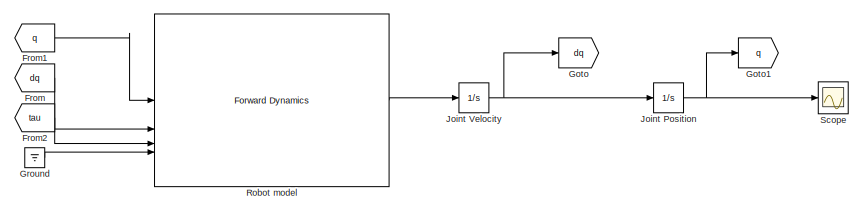
[diagram: root canvas - part 1/3, top center region]
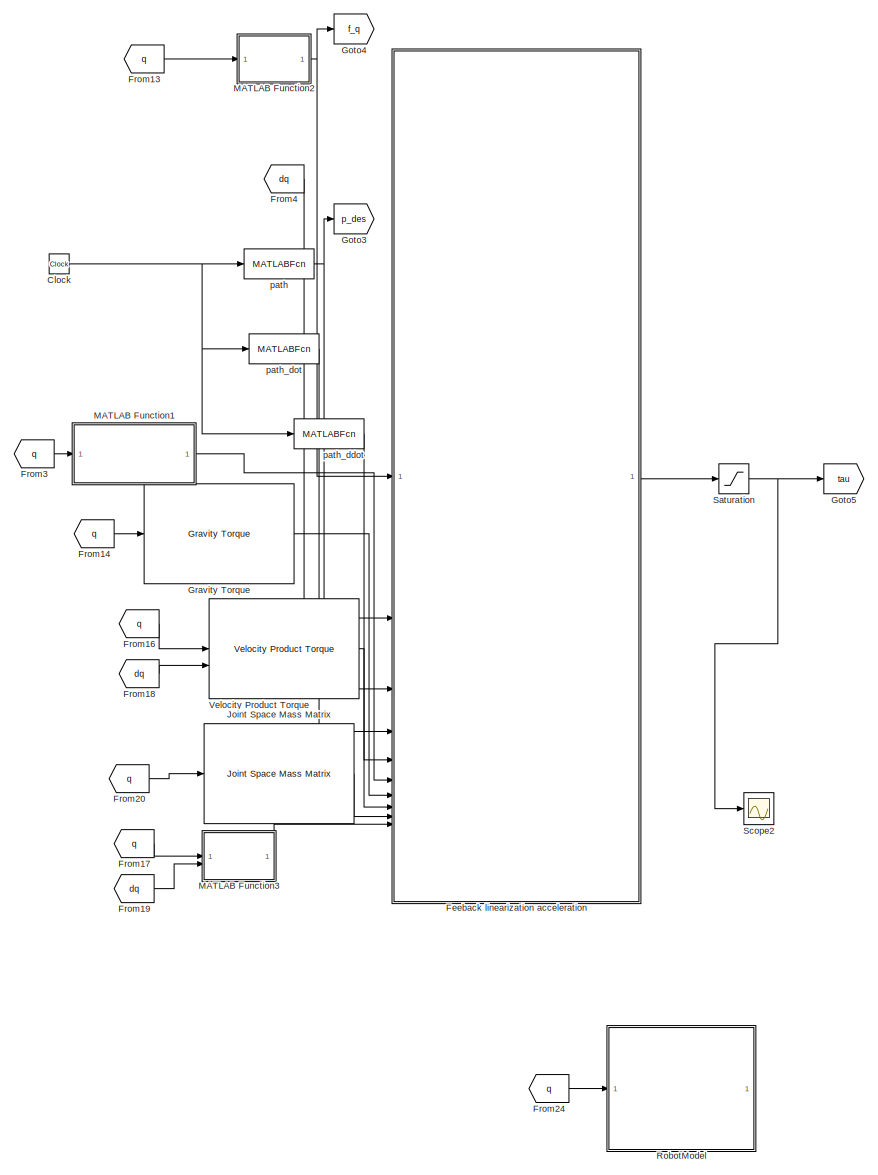
[diagram: root canvas - part 2/3, left side, full height]
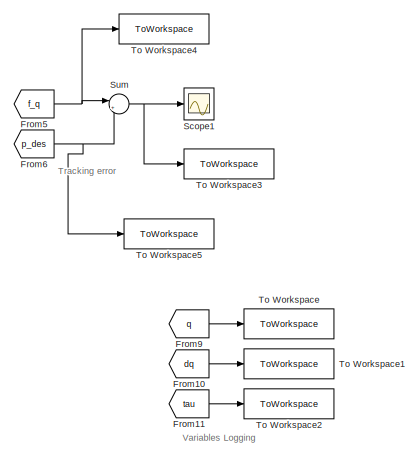
[diagram: root canvas - part 3/3, middle right region]
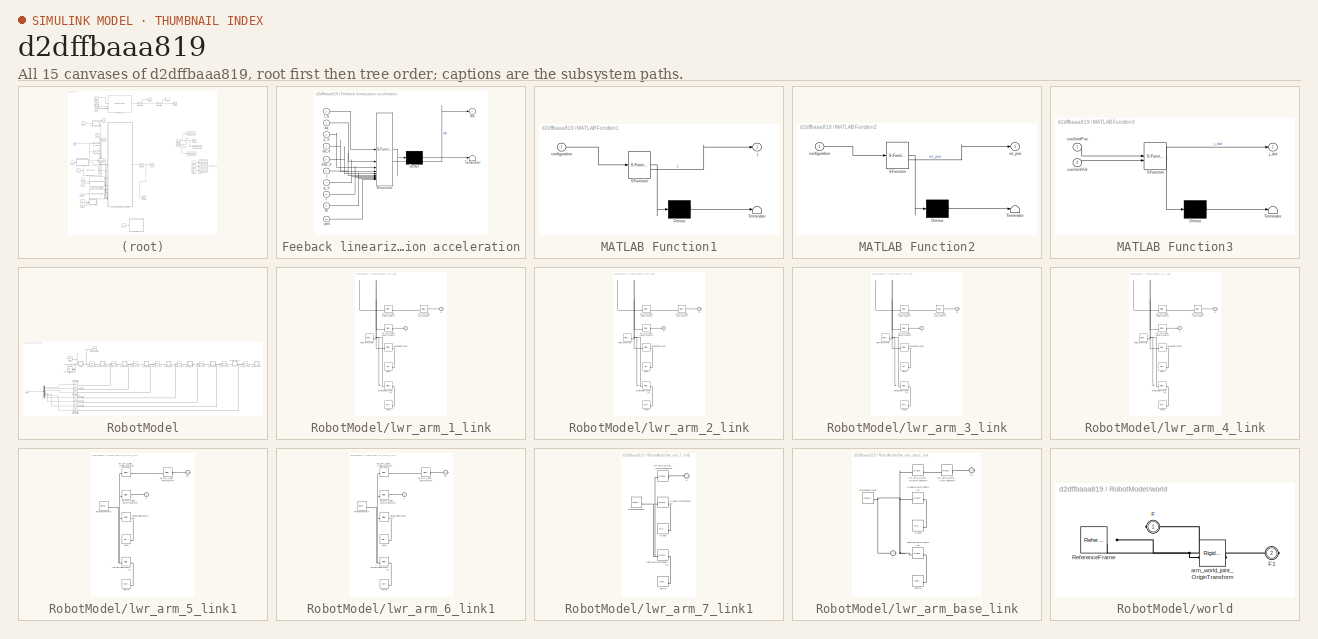
[diagram: thumbnail index - all 15 canvases of the model, root first then tree order]
MODEL slx_d2dffbaaa819
KIND model
CONFIG AbsTol = auto
CONFIG EnableMultiTasking = off
CONFIG FixedStep = auto
CONFIG MaxStep = auto
CONFIG MinStep = auto
CONFIG RelTol = 1e-3
CONFIG SampleTimeConstraint = Unconstrained
CONFIG SolverName = VariableStepAuto
CONFIG StartTime = 0.0
CONFIG StopTime = simulation_time
BLOCK [Clock] Clock
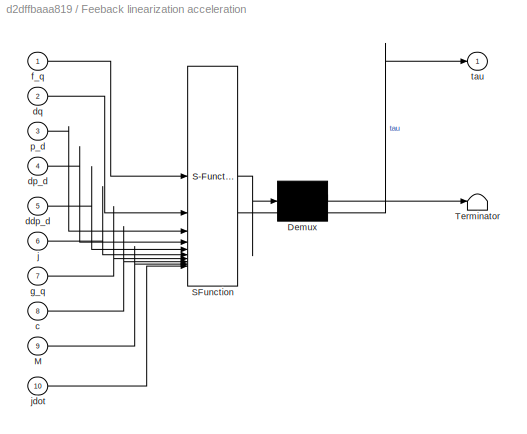
BLOCK [SubSystem] Feeback linearization acceleration
  ErrorFcn = Stateflow.Translate.translate
  PermitHierarchicalResolution = ExplicitOnly
  SFBlockType = MATLAB Function
  TreatAsAtomicUnit = on
BLOCK [Demux] Feeback linearization acceleration/ Demux 
  Outputs = 1
BLOCK [S-Function] Feeback linearization acceleration/ SFunction 
  EnableBusSupport = on
  FunctionName = sf_sfun
  PortCounts = [10 2]
  SFcnIsStateOwnerBlock = off
  SFunctionDeploymentMode = off
  Tag = Stateflow S-Function 2
BLOCK [Terminator] Feeback linearization acceleration/ Terminator 
BLOCK [Inport] Feeback linearization acceleration/M
  Port = 9
BLOCK [Inport] Feeback linearization acceleration/c
  Port = 8
BLOCK [Inport] Feeback linearization acceleration/ddp_d
  Port = 5
BLOCK [Inport] Feeback linearization acceleration/dp_d
  Port = 4
BLOCK [Inport] Feeback linearization acceleration/dq
  Port = 2
BLOCK [Inport] Feeback linearization acceleration/f_q
BLOCK [Inport] Feeback linearization acceleration/g_q
  Port = 7
BLOCK [Inport] Feeback linearization acceleration/j
  Port = 6
BLOCK [Inport] Feeback linearization acceleration/jdot
  Port = 10
BLOCK [Inport] Feeback linearization acceleration/p_d
  Port = 3
BLOCK [Outport] Feeback linearization acceleration/tau
BLOCK [From] From
  GotoTag = dq
BLOCK [From] From1
  GotoTag = q
BLOCK [From] From10
  GotoTag = dq
BLOCK [From] From11
  GotoTag = tau
BLOCK [From] From13
  GotoTag = q
BLOCK [From] From14
  GotoTag = q
BLOCK [From] From16
  GotoTag = q
BLOCK [From] From17
  GotoTag = q
BLOCK [From] From18
  GotoTag = dq
BLOCK [From] From19
  GotoTag = dq
BLOCK [From] From2
  GotoTag = tau
BLOCK [From] From20
  GotoTag = q
BLOCK [From] From24
  GotoTag = q
BLOCK [From] From3
  GotoTag = q
BLOCK [From] From4
  GotoTag = dq
BLOCK [From] From5
  GotoTag = f_q
BLOCK [From] From6
  GotoTag = p_des
BLOCK [From] From9
  GotoTag = q
BLOCK [Goto] Goto
  GotoTag = dq
BLOCK [Goto] Goto1
  GotoTag = q
BLOCK [Goto] Goto3
  GotoTag = p_des
BLOCK [Goto] Goto4
  GotoTag = f_q
BLOCK [Goto] Goto5
  GotoTag = tau
BLOCK [Reference] Gravity Torque  REF=robotmaniplib/Gravity Torque
  SourceBlock = robotmaniplib/Gravity Torque
  SourceType = Gravity Torque
BLOCK [Ground] Ground
BLOCK [Integrator] Joint Position
  InitialCondition = q_0
BLOCK [Reference] Joint Space Mass Matrix  REF=robotmaniplib/Joint Space Mass Matrix
  SourceBlock = robotmaniplib/Joint Space Mass Matrix
  SourceType = Joint Space Mass Matrix
BLOCK [Integrator] Joint Velocity
  InitialCondition = dq_0
BLOCK [SubSystem] MATLAB Function1
  ErrorFcn = Stateflow.Translate.translate
  PermitHierarchicalResolution = ExplicitOnly
  SFBlockType = MATLAB Function
  TreatAsAtomicUnit = on
BLOCK [Demux] MATLAB Function1/ Demux 
  Outputs = 1
BLOCK [S-Function] MATLAB Function1/ SFunction 
  EnableBusSupport = on
  FunctionName = sf_sfun
  PortCounts = [1 2]
  SFcnIsStateOwnerBlock = off
  SFunctionDeploymentMode = off
  Tag = Stateflow S-Function 3
BLOCK [Terminator] MATLAB Function1/ Terminator 
BLOCK [Inport] MATLAB Function1/configuration
BLOCK [Outport] MATLAB Function1/j
BLOCK [SubSystem] MATLAB Function2
  ErrorFcn = Stateflow.Translate.translate
  PermitHierarchicalResolution = ExplicitOnly
  SFBlockType = MATLAB Function
  TreatAsAtomicUnit = on
BLOCK [Demux] MATLAB Function2/ Demux 
  Outputs = 1
BLOCK [S-Function] MATLAB Function2/ SFunction 
  EnableBusSupport = on
  FunctionName = sf_sfun
  PortCounts = [1 2]
  SFcnIsStateOwnerBlock = off
  SFunctionDeploymentMode = off
  Tag = Stateflow S-Function 12
BLOCK [Terminator] MATLAB Function2/ Terminator 
BLOCK [Inport] MATLAB Function2/configuration
BLOCK [Outport] MATLAB Function2/ee_pos
BLOCK [SubSystem] MATLAB Function3
  ErrorFcn = Stateflow.Translate.translate
  PermitHierarchicalResolution = ExplicitOnly
  SFBlockType = MATLAB Function
  TreatAsAtomicUnit = on
BLOCK [Demux] MATLAB Function3/ Demux 
  Outputs = 1
BLOCK [S-Function] MATLAB Function3/ SFunction 
  EnableBusSupport = on
  FunctionName = sf_sfun
  PortCounts = [2 2]
  SFcnIsStateOwnerBlock = off
  SFunctionDeploymentMode = off
  Tag = Stateflow S-Function 4
BLOCK [Terminator] MATLAB Function3/ Terminator 
BLOCK [Inport] MATLAB Function3/currJointPos
BLOCK [Inport] MATLAB Function3/currJointVel
  Port = 2
BLOCK [Outport] MATLAB Function3/j_dot
BLOCK [Reference] Robot model  REF=robotmaniplib/Forward Dynamics
  SourceBlock = robotmaniplib/Forward Dynamics
  SourceType = Forward Dynamics
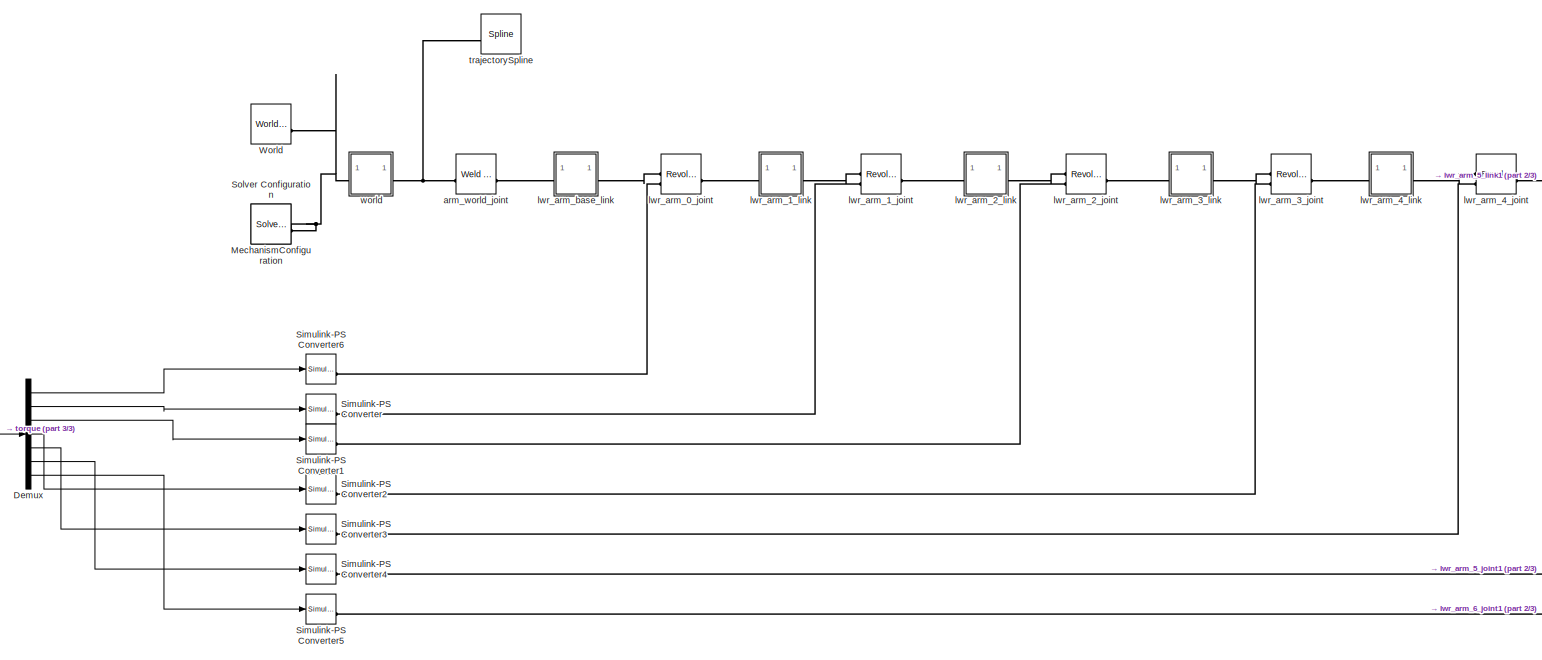
[diagram: RobotModel - part 1/3, center side, full height]
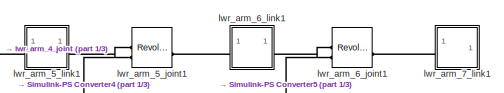
[diagram: RobotModel - part 2/3, top right region]
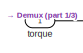
[diagram: RobotModel - part 3/3, bottom left region]
BLOCK [SubSystem] RobotModel
BLOCK [Demux] RobotModel/Demux
  Outputs = 7
BLOCK [Reference] RobotModel/MechanismConfiguration  REF=sm_lib/Utilities/Mechanism
Configuration
  SourceBlock = sm_lib/Utilities/Mechanism\nConfiguration
  SourceType = Mechanism\nConfiguration
BLOCK [Reference] RobotModel/Simulink-PS Converter  REF=nesl_utility/Simulink-PS
Converter
  SourceBlock = nesl_utility/Simulink-PS\nConverter
  SourceType = Simulink-PS\nConverter
BLOCK [Reference] RobotModel/Simulink-PS Converter1  REF=nesl_utility/Simulink-PS
Converter
  SourceBlock = nesl_utility/Simulink-PS\nConverter
  SourceType = Simulink-PS\nConverter
BLOCK [Reference] RobotModel/Simulink-PS Converter2  REF=nesl_utility/Simulink-PS
Converter
  SourceBlock = nesl_utility/Simulink-PS\nConverter
  SourceType = Simulink-PS\nConverter
BLOCK [Reference] RobotModel/Simulink-PS Converter3  REF=nesl_utility/Simulink-PS
Converter
  SourceBlock = nesl_utility/Simulink-PS\nConverter
  SourceType = Simulink-PS\nConverter
BLOCK [Reference] RobotModel/Simulink-PS Converter4  REF=nesl_utility/Simulink-PS
Converter
  SourceBlock = nesl_utility/Simulink-PS\nConverter
  SourceType = Simulink-PS\nConverter
BLOCK [Reference] RobotModel/Simulink-PS Converter5  REF=nesl_utility/Simulink-PS
Converter
  SourceBlock = nesl_utility/Simulink-PS\nConverter
  SourceType = Simulink-PS\nConverter
BLOCK [Reference] RobotModel/Simulink-PS Converter6  REF=nesl_utility/Simulink-PS
Converter
  SourceBlock = nesl_utility/Simulink-PS\nConverter
  SourceType = Simulink-PS\nConverter
BLOCK [Reference] RobotModel/Solver Configuration  REF=nesl_utility/Solver
Configuration
  SourceBlock = nesl_utility/Solver\nConfiguration
  SourceType = Solver\nConfiguration
BLOCK [Reference] RobotModel/World  REF=sm_lib/Frames and
Transforms/World Frame
  SourceBlock = sm_lib/Frames and\nTransforms/World Frame
  SourceType = World Frame
BLOCK [Reference] RobotModel/arm_world_joint  REF=sm_lib/Joints/Weld Joint
  SourceBlock = sm_lib/Joints/Weld Joint
  SourceType = Weld Joint
BLOCK [Reference] RobotModel/lwr_arm_0_joint  REF=sm_lib/Joints/Revolute Joint
  SourceBlock = sm_lib/Joints/Revolute Joint
  SourceType = Revolute Joint
BLOCK [Reference] RobotModel/lwr_arm_1_joint  REF=sm_lib/Joints/Revolute Joint
  SourceBlock = sm_lib/Joints/Revolute Joint
  SourceType = Revolute Joint
BLOCK [SubSystem] RobotModel/lwr_arm_1_link
BLOCK [PMIOPort] RobotModel/lwr_arm_1_link/F
  Side = Left
BLOCK [PMIOPort] RobotModel/lwr_arm_1_link/F1
  Port = 2
  Side = Right
BLOCK [Reference] RobotModel/lwr_arm_1_link/Inertia  REF=sm_lib/Body Elements/Inertia
  SourceBlock = sm_lib/Body Elements/Inertia
  SourceType = Inertia
BLOCK [Reference] RobotModel/lwr_arm_1_link/InertiaOriginTransform  REF=sm_lib/Frames and
Transforms/Rigid
Transform
  SourceBlock = sm_lib/Frames and\nTransforms/Rigid\nTransform
  SourceType = Rigid\nTransform
BLOCK [Reference] RobotModel/lwr_arm_1_link/ReferenceFrame  REF=sm_lib/Frames and
Transforms/Reference
Frame
  SourceBlock = sm_lib/Frames and\nTransforms/Reference\nFrame
  SourceType = Reference\nFrame
BLOCK [Reference] RobotModel/lwr_arm_1_link/Visual  REF=sm_lib/Body Elements/File Solid
  SourceBlock = sm_lib/Body Elements/File Solid
  SourceType = File Solid
BLOCK [Reference] RobotModel/lwr_arm_1_link/VisualOriginTransform  REF=sm_lib/Frames and
Transforms/Rigid
Transform
  SourceBlock = sm_lib/Frames and\nTransforms/Rigid\nTransform
  SourceType = Rigid\nTransform
BLOCK [Reference] RobotModel/lwr_arm_1_link/lwr_arm_0_joint_AxisInvTransform  REF=sm_lib/Frames and
Transforms/Rigid
Transform
  SourceBlock = sm_lib/Frames and\nTransforms/Rigid\nTransform
  SourceType = Rigid\nTransform
BLOCK [Reference] RobotModel/lwr_arm_1_link/lwr_arm_1_joint_AxisTransform  REF=sm_lib/Frames and
Transforms/Rigid
Transform
  SourceBlock = sm_lib/Frames and\nTransforms/Rigid\nTransform
  SourceType = Rigid\nTransform
BLOCK [Reference] RobotModel/lwr_arm_1_link/lwr_arm_1_joint_OriginTransform  REF=sm_lib/Frames and
Transforms/Rigid
Transform
  SourceBlock = sm_lib/Frames and\nTransforms/Rigid\nTransform
  SourceType = Rigid\nTransform
BLOCK [Reference] RobotModel/lwr_arm_2_joint  REF=sm_lib/Joints/Revolute Joint
  SourceBlock = sm_lib/Joints/Revolute Joint
  SourceType = Revolute Joint
BLOCK [SubSystem] RobotModel/lwr_arm_2_link
BLOCK [PMIOPort] RobotModel/lwr_arm_2_link/F
  Side = Left
BLOCK [PMIOPort] RobotModel/lwr_arm_2_link/F1
  Port = 2
  Side = Right
BLOCK [Reference] RobotModel/lwr_arm_2_link/Inertia  REF=sm_lib/Body Elements/Inertia
  SourceBlock = sm_lib/Body Elements/Inertia
  SourceType = Inertia
BLOCK [Reference] RobotModel/lwr_arm_2_link/InertiaOriginTransform  REF=sm_lib/Frames and
Transforms/Rigid
Transform
  SourceBlock = sm_lib/Frames and\nTransforms/Rigid\nTransform
  SourceType = Rigid\nTransform
BLOCK [Reference] RobotModel/lwr_arm_2_link/ReferenceFrame  REF=sm_lib/Frames and
Transforms/Reference
Frame
  SourceBlock = sm_lib/Frames and\nTransforms/Reference\nFrame
  SourceType = Reference\nFrame
BLOCK [Reference] RobotModel/lwr_arm_2_link/Visual  REF=sm_lib/Body Elements/File Solid
  SourceBlock = sm_lib/Body Elements/File Solid
  SourceType = File Solid
BLOCK [Reference] RobotModel/lwr_arm_2_link/VisualOriginTransform  REF=sm_lib/Frames and
Transforms/Rigid
Transform
  SourceBlock = sm_lib/Frames and\nTransforms/Rigid\nTransform
  SourceType = Rigid\nTransform
BLOCK [Reference] RobotModel/lwr_arm_2_link/lwr_arm_1_joint_AxisInvTransform  REF=sm_lib/Frames and
Transforms/Rigid
Transform
  SourceBlock = sm_lib/Frames and\nTransforms/Rigid\nTransform
  SourceType = Rigid\nTransform
BLOCK [Reference] RobotModel/lwr_arm_2_link/lwr_arm_2_joint_AxisTransform  REF=sm_lib/Frames and
Transforms/Rigid
Transform
  SourceBlock = sm_lib/Frames and\nTransforms/Rigid\nTransform
  SourceType = Rigid\nTransform
BLOCK [Reference] RobotModel/lwr_arm_2_link/lwr_arm_2_joint_OriginTransform  REF=sm_lib/Frames and
Transforms/Rigid
Transform
  SourceBlock = sm_lib/Frames and\nTransforms/Rigid\nTransform
  SourceType = Rigid\nTransform
BLOCK [Reference] RobotModel/lwr_arm_3_joint  REF=sm_lib/Joints/Revolute Joint
  SourceBlock = sm_lib/Joints/Revolute Joint
  SourceType = Revolute Joint
BLOCK [SubSystem] RobotModel/lwr_arm_3_link
BLOCK [PMIOPort] RobotModel/lwr_arm_3_link/F
  Side = Left
BLOCK [PMIOPort] RobotModel/lwr_arm_3_link/F1
  Port = 2
  Side = Right
BLOCK [Reference] RobotModel/lwr_arm_3_link/Inertia  REF=sm_lib/Body Elements/Inertia
  SourceBlock = sm_lib/Body Elements/Inertia
  SourceType = Inertia
BLOCK [Reference] RobotModel/lwr_arm_3_link/InertiaOriginTransform  REF=sm_lib/Frames and
Transforms/Rigid
Transform
  SourceBlock = sm_lib/Frames and\nTransforms/Rigid\nTransform
  SourceType = Rigid\nTransform
BLOCK [Reference] RobotModel/lwr_arm_3_link/ReferenceFrame  REF=sm_lib/Frames and
Transforms/Reference
Frame
  SourceBlock = sm_lib/Frames and\nTransforms/Reference\nFrame
  SourceType = Reference\nFrame
BLOCK [Reference] RobotModel/lwr_arm_3_link/Visual  REF=sm_lib/Body Elements/File Solid
  SourceBlock = sm_lib/Body Elements/File Solid
  SourceType = File Solid
BLOCK [Reference] RobotModel/lwr_arm_3_link/VisualOriginTransform  REF=sm_lib/Frames and
Transforms/Rigid
Transform
  SourceBlock = sm_lib/Frames and\nTransforms/Rigid\nTransform
  SourceType = Rigid\nTransform
BLOCK [Reference] RobotModel/lwr_arm_3_link/lwr_arm_2_joint_AxisInvTransform  REF=sm_lib/Frames and
Transforms/Rigid
Transform
  SourceBlock = sm_lib/Frames and\nTransforms/Rigid\nTransform
  SourceType = Rigid\nTransform
BLOCK [Reference] RobotModel/lwr_arm_3_link/lwr_arm_3_joint_AxisTransform  REF=sm_lib/Frames and
Transforms/Rigid
Transform
  SourceBlock = sm_lib/Frames and\nTransforms/Rigid\nTransform
  SourceType = Rigid\nTransform
BLOCK [Reference] RobotModel/lwr_arm_3_link/lwr_arm_3_joint_OriginTransform  REF=sm_lib/Frames and
Transforms/Rigid
Transform
  SourceBlock = sm_lib/Frames and\nTransforms/Rigid\nTransform
  SourceType = Rigid\nTransform
BLOCK [Reference] RobotModel/lwr_arm_4_joint  REF=sm_lib/Joints/Revolute Joint
  SourceBlock = sm_lib/Joints/Revolute Joint
  SourceType = Revolute Joint
BLOCK [SubSystem] RobotModel/lwr_arm_4_link
BLOCK [PMIOPort] RobotModel/lwr_arm_4_link/F
  Side = Left
BLOCK [PMIOPort] RobotModel/lwr_arm_4_link/F1
  Port = 2
  Side = Right
BLOCK [Reference] RobotModel/lwr_arm_4_link/Inertia  REF=sm_lib/Body Elements/Inertia
  SourceBlock = sm_lib/Body Elements/Inertia
  SourceType = Inertia
BLOCK [Reference] RobotModel/lwr_arm_4_link/InertiaOriginTransform  REF=sm_lib/Frames and
Transforms/Rigid
Transform
  SourceBlock = sm_lib/Frames and\nTransforms/Rigid\nTransform
  SourceType = Rigid\nTransform
BLOCK [Reference] RobotModel/lwr_arm_4_link/ReferenceFrame  REF=sm_lib/Frames and
Transforms/Reference
Frame
  SourceBlock = sm_lib/Frames and\nTransforms/Reference\nFrame
  SourceType = Reference\nFrame
BLOCK [Reference] RobotModel/lwr_arm_4_link/Visual  REF=sm_lib/Body Elements/File Solid
  SourceBlock = sm_lib/Body Elements/File Solid
  SourceType = File Solid
BLOCK [Reference] RobotModel/lwr_arm_4_link/VisualOriginTransform  REF=sm_lib/Frames and
Transforms/Rigid
Transform
  SourceBlock = sm_lib/Frames and\nTransforms/Rigid\nTransform
  SourceType = Rigid\nTransform
BLOCK [Reference] RobotModel/lwr_arm_4_link/lwr_arm_3_joint_AxisInvTransform  REF=sm_lib/Frames and
Transforms/Rigid
Transform
  SourceBlock = sm_lib/Frames and\nTransforms/Rigid\nTransform
  SourceType = Rigid\nTransform
BLOCK [Reference] RobotModel/lwr_arm_4_link/lwr_arm_4_joint_AxisTransform  REF=sm_lib/Frames and
Transforms/Rigid
Transform
  SourceBlock = sm_lib/Frames and\nTransforms/Rigid\nTransform
  SourceType = Rigid\nTransform
BLOCK [Reference] RobotModel/lwr_arm_4_link/lwr_arm_4_joint_OriginTransform  REF=sm_lib/Frames and
Transforms/Rigid
Transform
  SourceBlock = sm_lib/Frames and\nTransforms/Rigid\nTransform
  SourceType = Rigid\nTransform
BLOCK [Reference] RobotModel/lwr_arm_5_joint1  REF=sm_lib/Joints/Revolute Joint
  SourceBlock = sm_lib/Joints/Revolute Joint
  SourceType = Revolute Joint
BLOCK [SubSystem] RobotModel/lwr_arm_5_link1
BLOCK [PMIOPort] RobotModel/lwr_arm_5_link1/F
  Side = Left
BLOCK [PMIOPort] RobotModel/lwr_arm_5_link1/F1
  Port = 2
  Side = Right
BLOCK [Reference] RobotModel/lwr_arm_5_link1/Inertia  REF=sm_lib/Body Elements/Inertia
  SourceBlock = sm_lib/Body Elements/Inertia
  SourceType = Inertia
BLOCK [Reference] RobotModel/lwr_arm_5_link1/InertiaOriginTransform  REF=sm_lib/Frames and
Transforms/Rigid
Transform
  SourceBlock = sm_lib/Frames and\nTransforms/Rigid\nTransform
  SourceType = Rigid\nTransform
BLOCK [Reference] RobotModel/lwr_arm_5_link1/ReferenceFrame  REF=sm_lib/Frames and
Transforms/Reference
Frame
  SourceBlock = sm_lib/Frames and\nTransforms/Reference\nFrame
  SourceType = Reference\nFrame
BLOCK [Reference] RobotModel/lwr_arm_5_link1/Visual  REF=sm_lib/Body Elements/File Solid
  SourceBlock = sm_lib/Body Elements/File Solid
  SourceType = File Solid
BLOCK [Reference] RobotModel/lwr_arm_5_link1/VisualOriginTransform  REF=sm_lib/Frames and
Transforms/Rigid
Transform
  SourceBlock = sm_lib/Frames and\nTransforms/Rigid\nTransform
  SourceType = Rigid\nTransform
BLOCK [Reference] RobotModel/lwr_arm_5_link1/lwr_arm_4_joint_AxisInvTransform  REF=sm_lib/Frames and
Transforms/Rigid
Transform
  SourceBlock = sm_lib/Frames and\nTransforms/Rigid\nTransform
  SourceType = Rigid\nTransform
BLOCK [Reference] RobotModel/lwr_arm_5_link1/lwr_arm_5_joint_AxisTransform  REF=sm_lib/Frames and
Transforms/Rigid
Transform
  SourceBlock = sm_lib/Frames and\nTransforms/Rigid\nTransform
  SourceType = Rigid\nTransform
BLOCK [Reference] RobotModel/lwr_arm_5_link1/lwr_arm_5_joint_OriginTransform  REF=sm_lib/Frames and
Transforms/Rigid
Transform
  SourceBlock = sm_lib/Frames and\nTransforms/Rigid\nTransform
  SourceType = Rigid\nTransform
BLOCK [Reference] RobotModel/lwr_arm_6_joint1  REF=sm_lib/Joints/Revolute Joint
  SourceBlock = sm_lib/Joints/Revolute Joint
  SourceType = Revolute Joint
BLOCK [SubSystem] RobotModel/lwr_arm_6_link1
BLOCK [PMIOPort] RobotModel/lwr_arm_6_link1/F
  Side = Left
BLOCK [PMIOPort] RobotModel/lwr_arm_6_link1/F1
  Port = 2
  Side = Right
BLOCK [Reference] RobotModel/lwr_arm_6_link1/Inertia  REF=sm_lib/Body Elements/Inertia
  SourceBlock = sm_lib/Body Elements/Inertia
  SourceType = Inertia
BLOCK [Reference] RobotModel/lwr_arm_6_link1/InertiaOriginTransform  REF=sm_lib/Frames and
Transforms/Rigid
Transform
  SourceBlock = sm_lib/Frames and\nTransforms/Rigid\nTransform
  SourceType = Rigid\nTransform
BLOCK [Reference] RobotModel/lwr_arm_6_link1/ReferenceFrame  REF=sm_lib/Frames and
Transforms/Reference
Frame
  SourceBlock = sm_lib/Frames and\nTransforms/Reference\nFrame
  SourceType = Reference\nFrame
BLOCK [Reference] RobotModel/lwr_arm_6_link1/Visual  REF=sm_lib/Body Elements/File Solid
  SourceBlock = sm_lib/Body Elements/File Solid
  SourceType = File Solid
BLOCK [Reference] RobotModel/lwr_arm_6_link1/VisualOriginTransform  REF=sm_lib/Frames and
Transforms/Rigid
Transform
  SourceBlock = sm_lib/Frames and\nTransforms/Rigid\nTransform
  SourceType = Rigid\nTransform
BLOCK [Reference] RobotModel/lwr_arm_6_link1/lwr_arm_5_joint_AxisInvTransform  REF=sm_lib/Frames and
Transforms/Rigid
Transform
  SourceBlock = sm_lib/Frames and\nTransforms/Rigid\nTransform
  SourceType = Rigid\nTransform
BLOCK [Reference] RobotModel/lwr_arm_6_link1/lwr_arm_6_joint_AxisTransform  REF=sm_lib/Frames and
Transforms/Rigid
Transform
  SourceBlock = sm_lib/Frames and\nTransforms/Rigid\nTransform
  SourceType = Rigid\nTransform
BLOCK [Reference] RobotModel/lwr_arm_6_link1/lwr_arm_6_joint_OriginTransform  REF=sm_lib/Frames and
Transforms/Rigid
Transform
  SourceBlock = sm_lib/Frames and\nTransforms/Rigid\nTransform
  SourceType = Rigid\nTransform
BLOCK [SubSystem] RobotModel/lwr_arm_7_link1
BLOCK [PMIOPort] RobotModel/lwr_arm_7_link1/F
  Side = Left
BLOCK [Reference] RobotModel/lwr_arm_7_link1/Inertia  REF=sm_lib/Body Elements/Inertia
  SourceBlock = sm_lib/Body Elements/Inertia
  SourceType = Inertia
BLOCK [Reference] RobotModel/lwr_arm_7_link1/InertiaOriginTransform  REF=sm_lib/Frames and
Transforms/Rigid
Transform
  SourceBlock = sm_lib/Frames and\nTransforms/Rigid\nTransform
  SourceType = Rigid\nTransform
BLOCK [Reference] RobotModel/lwr_arm_7_link1/ReferenceFrame  REF=sm_lib/Frames and
Transforms/Reference
Frame
  SourceBlock = sm_lib/Frames and\nTransforms/Reference\nFrame
  SourceType = Reference\nFrame
BLOCK [Reference] RobotModel/lwr_arm_7_link1/Visual  REF=sm_lib/Body Elements/File Solid
  SourceBlock = sm_lib/Body Elements/File Solid
  SourceType = File Solid
BLOCK [Reference] RobotModel/lwr_arm_7_link1/VisualOriginTransform  REF=sm_lib/Frames and
Transforms/Rigid
Transform
  SourceBlock = sm_lib/Frames and\nTransforms/Rigid\nTransform
  SourceType = Rigid\nTransform
BLOCK [Reference] RobotModel/lwr_arm_7_link1/lwr_arm_6_joint_AxisInvTransform  REF=sm_lib/Frames and
Transforms/Rigid
Transform
  SourceBlock = sm_lib/Frames and\nTransforms/Rigid\nTransform
  SourceType = Rigid\nTransform
BLOCK [SubSystem] RobotModel/lwr_arm_base_link
BLOCK [PMIOPort] RobotModel/lwr_arm_base_link/F
  Side = Left
BLOCK [PMIOPort] RobotModel/lwr_arm_base_link/F1
  Port = 2
  Side = Right
BLOCK [Reference] RobotModel/lwr_arm_base_link/Inertia  REF=sm_lib/Body Elements/Inertia
  SourceBlock = sm_lib/Body Elements/Inertia
  SourceType = Inertia
BLOCK [Reference] RobotModel/lwr_arm_base_link/InertiaOriginTransform  REF=sm_lib/Frames and
Transforms/Rigid
Transform
  SourceBlock = sm_lib/Frames and\nTransforms/Rigid\nTransform
  SourceType = Rigid\nTransform
BLOCK [Reference] RobotModel/lwr_arm_base_link/ReferenceFrame  REF=sm_lib/Frames and
Transforms/Reference
Frame
  SourceBlock = sm_lib/Frames and\nTransforms/Reference\nFrame
  SourceType = Reference\nFrame
BLOCK [Reference] RobotModel/lwr_arm_base_link/Visual  REF=sm_lib/Body Elements/File Solid
  SourceBlock = sm_lib/Body Elements/File Solid
  SourceType = File Solid
BLOCK [Reference] RobotModel/lwr_arm_base_link/VisualOriginTransform  REF=sm_lib/Frames and
Transforms/Rigid
Transform
  SourceBlock = sm_lib/Frames and\nTransforms/Rigid\nTransform
  SourceType = Rigid\nTransform
BLOCK [Reference] RobotModel/lwr_arm_base_link/lwr_arm_0_joint_AxisTransform  REF=sm_lib/Frames and
Transforms/Rigid
Transform
  SourceBlock = sm_lib/Frames and\nTransforms/Rigid\nTransform
  SourceType = Rigid\nTransform
BLOCK [Reference] RobotModel/lwr_arm_base_link/lwr_arm_0_joint_OriginTransform  REF=sm_lib/Frames and
Transforms/Rigid
Transform
  SourceBlock = sm_lib/Frames and\nTransforms/Rigid\nTransform
  SourceType = Rigid\nTransform
BLOCK [Inport] RobotModel/torque
BLOCK [Reference] RobotModel/trajectorySpline  REF=sm_lib/Curves and Surfaces/Spline
  SourceBlock = sm_lib/Curves and Surfaces/Spline
  SourceType = Spline
BLOCK [SubSystem] RobotModel/world
BLOCK [PMIOPort] RobotModel/world/F
  Side = Left
BLOCK [PMIOPort] RobotModel/world/F1
  Port = 2
  Side = Right
BLOCK [Reference] RobotModel/world/ReferenceFrame  REF=sm_lib/Frames and
Transforms/Reference
Frame
  SourceBlock = sm_lib/Frames and\nTransforms/Reference\nFrame
  SourceType = Reference\nFrame
BLOCK [Reference] RobotModel/world/arm_world_joint_OriginTransform  REF=sm_lib/Frames and
Transforms/Rigid
Transform
  SourceBlock = sm_lib/Frames and\nTransforms/Rigid\nTransform
  SourceType = Rigid\nTransform
BLOCK [Saturate] Saturation
  LowerLimit = torque_low_bound
  UpperLimit = torque_up_bound
BLOCK [Scope] Scope
  Floating = off
  NumInputPorts = 1
  ScopeSpecificationString = Simulink.scopes.TimeScopeBlockCfg('CurrentConfiguration', extmgr.ConfigurationSet(extmgr.Configuration('Core','General UI',true),extmgr.Configuration('Core','Source UI',true),extmgr.Configuration('Sources','WiredSimulink',true),extmgr.Configuration('Visuals','Time Domain',true,'SerializedDisplays',{struct('MinYLimReal','-32.32576','MaxYLimReal','22.04365','YLabelReal','','MinYLimMag','0.00000','Ma...<+1703ch>
BLOCK [Scope] Scope1
  Floating = off
  NumInputPorts = 1
  ScopeSpecificationString = Simulink.scopes.TimeScopeBlockCfg('CurrentConfiguration', extmgr.ConfigurationSet(extmgr.Configuration('Core','General UI',true),extmgr.Configuration('Core','Source UI',true),extmgr.Configuration('Sources','WiredSimulink',true,'DataLoggingVariableName','ScopeData1'),extmgr.Configuration('Visuals','Time Domain',true,'SerializedDisplays',{struct('MinYLimReal','-0.53551','MaxYLimReal','0.35715','YLab...<+1541ch>
BLOCK [Scope] Scope2
  Floating = off
  NumInputPorts = 1
  ScopeSpecificationString = Simulink.scopes.TimeScopeBlockCfg('CurrentConfiguration', extmgr.ConfigurationSet(extmgr.Configuration('Core','General UI',true),extmgr.Configuration('Core','Source UI',true),extmgr.Configuration('Sources','WiredSimulink',true,'DataLoggingVariableName','ScopeData1'),extmgr.Configuration('Visuals','Time Domain',true,'SerializedDisplays',{struct('MinYLimReal','-43.75','MaxYLimReal','43.75','YLabelRe...<+1604ch>
BLOCK [Sum] Sum
  Inputs = |+-
BLOCK [ToWorkspace] To Workspace
  FixptAsFi = on
  MaxDataPoints = inf
  SampleTime = -1
  SaveFormat = Timeseries
  VariableName = q
BLOCK [ToWorkspace] To Workspace1
  FixptAsFi = on
  MaxDataPoints = inf
  SampleTime = -1
  SaveFormat = Timeseries
  VariableName = dq
BLOCK [ToWorkspace] To Workspace2
  FixptAsFi = on
  MaxDataPoints = inf
  SampleTime = -1
  SaveFormat = Timeseries
  VariableName = tau
BLOCK [ToWorkspace] To Workspace3
  FixptAsFi = on
  MaxDataPoints = inf
  SampleTime = -1
  SaveFormat = Timeseries
  VariableName = cart_err
BLOCK [ToWorkspace] To Workspace4
  FixptAsFi = on
  MaxDataPoints = inf
  SampleTime = -1
  SaveFormat = Timeseries
  VariableName = f_q
BLOCK [ToWorkspace] To Workspace5
  FixptAsFi = on
  MaxDataPoints = inf
  SampleTime = -1
  SaveFormat = Timeseries
  VariableName = f_d
BLOCK [Reference] Velocity Product Torque  REF=robotmaniplib/Velocity Product Torque
  SourceBlock = robotmaniplib/Velocity Product Torque
  SourceType = Velocity Product Torque
BLOCK [MATLABFcn] path
  MATLABFcn = path(u)
BLOCK [MATLABFcn] path_ddot
  MATLABFcn = path_ddot(u)
BLOCK [MATLABFcn] path_dot
  MATLABFcn = path_dot(u)
ANNOTATION (root): Tracking error
ANNOTATION (root): Variables Logging
NET Clock:1 -> path:1, path_ddot:1, path_dot:1
LINE Feeback linearization acceleration:1 -> Saturation:1
LINE From10:1 -> To Workspace1:1
LINE From11:1 -> To Workspace2:1
LINE From13:1 -> MATLAB Function2:1
LINE From14:1 -> Gravity Torque:1
LINE From16:1 -> Velocity Product Torque:1
LINE From17:1 -> MATLAB Function3:1
LINE From18:1 -> Velocity Product Torque:2
LINE From19:1 -> MATLAB Function3:2
LINE From1:1 -> Robot model:1
LINE From20:1 -> Joint Space Mass Matrix:1
LINE From24:1 -> RobotModel:1
LINE From2:1 -> Robot model:3
LINE From3:1 -> MATLAB Function1:1
LINE From4:1 -> Feeback linearization acceleration:2
NET From5:1 -> Sum:1, To Workspace4:1
NET From6:1 -> Sum:2, To Workspace5:1
LINE From9:1 -> To Workspace:1
LINE From:1 -> Robot model:2
LINE Gravity Torque:1 -> Feeback linearization acceleration:7
LINE Ground:1 -> Robot model:4
NET Joint Position:1 -> Goto1:1, Scope:1
LINE Joint Space Mass Matrix:1 -> Feeback linearization acceleration:9
NET Joint Velocity:1 -> Goto:1, Joint Position:1
LINE MATLAB Function1:1 -> Feeback linearization acceleration:6
NET MATLAB Function2:1 -> Feeback linearization acceleration:1, Goto4:1
LINE MATLAB Function3:1 -> Feeback linearization acceleration:10
LINE Robot model:1 -> Joint Velocity:1
LINE RobotModel/Demux:1 -> RobotModel/Simulink-PS Converter6:1
LINE RobotModel/Demux:2 -> RobotModel/Simulink-PS Converter:1
LINE RobotModel/Demux:3 -> RobotModel/Simulink-PS Converter1:1
LINE RobotModel/Demux:4 -> RobotModel/Simulink-PS Converter2:1
LINE RobotModel/Demux:5 -> RobotModel/Simulink-PS Converter3:1
LINE RobotModel/Demux:6 -> RobotModel/Simulink-PS Converter4:1
LINE RobotModel/Demux:7 -> RobotModel/Simulink-PS Converter5:1
LINE RobotModel/torque:1 -> RobotModel/Demux:1
NET Saturation:1 -> Goto5:1, Scope2:1
NET Sum:1 -> Scope1:1, To Workspace3:1
LINE Velocity Product Torque:1 -> Feeback linearization acceleration:8
NET path:1 -> Feeback linearization acceleration:3, Goto3:1
LINE path_ddot:1 -> Feeback linearization acceleration:5
LINE path_dot:1 -> Feeback linearization acceleration:4
PNET net1: RobotModel/MechanismConfiguration:RConn1 -- RobotModel/Solver Configuration:RConn1 -- RobotModel/World:RConn1 -- RobotModel/world:LConn1
PLINE RobotModel/Simulink-PS Converter1:RConn1 -- RobotModel/lwr_arm_2_joint:LConn2
PLINE RobotModel/Simulink-PS Converter2:RConn1 -- RobotModel/lwr_arm_3_joint:LConn2
PLINE RobotModel/Simulink-PS Converter3:RConn1 -- RobotModel/lwr_arm_4_joint:LConn2
PLINE RobotModel/Simulink-PS Converter4:RConn1 -- RobotModel/lwr_arm_5_joint1:LConn2
PLINE RobotModel/Simulink-PS Converter5:RConn1 -- RobotModel/lwr_arm_6_joint1:LConn2
PLINE RobotModel/Simulink-PS Converter6:RConn1 -- RobotModel/lwr_arm_0_joint:LConn2
PLINE RobotModel/Simulink-PS Converter:RConn1 -- RobotModel/lwr_arm_1_joint:LConn2
PNET net2: RobotModel/arm_world_joint:LConn1 -- RobotModel/trajectorySpline:LConn1 -- RobotModel/world:RConn1
PLINE RobotModel/arm_world_joint:RConn1 -- RobotModel/lwr_arm_base_link:LConn1
PLINE RobotModel/lwr_arm_0_joint:LConn1 -- RobotModel/lwr_arm_base_link:RConn1
PLINE RobotModel/lwr_arm_0_joint:RConn1 -- RobotModel/lwr_arm_1_link:LConn1
PLINE RobotModel/lwr_arm_1_joint:LConn1 -- RobotModel/lwr_arm_1_link:RConn1
PLINE RobotModel/lwr_arm_1_joint:RConn1 -- RobotModel/lwr_arm_2_link:LConn1
PLINE RobotModel/lwr_arm_1_link/F1:RConn1 -- RobotModel/lwr_arm_1_link/lwr_arm_1_joint_AxisTransform:RConn1
PLINE RobotModel/lwr_arm_1_link/F:RConn1 -- RobotModel/lwr_arm_1_link/lwr_arm_0_joint_AxisInvTransform:RConn1
PLINE RobotModel/lwr_arm_1_link/Inertia:RConn1 -- RobotModel/lwr_arm_1_link/InertiaOriginTransform:RConn1
PNET net3: RobotModel/lwr_arm_1_link/InertiaOriginTransform:LConn1 -- RobotModel/lwr_arm_1_link/ReferenceFrame:RConn1 -- RobotModel/lwr_arm_1_link/VisualOriginTransform:LConn1 -- RobotModel/lwr_arm_1_link/lwr_arm_0_joint_AxisInvTransform:LConn1 -- RobotModel/lwr_arm_1_link/lwr_arm_1_joint_OriginTransform:LConn1
PLINE RobotModel/lwr_arm_1_link/Visual:RConn1 -- RobotModel/lwr_arm_1_link/VisualOriginTransform:RConn1
PLINE RobotModel/lwr_arm_1_link/lwr_arm_1_joint_AxisTransform:LConn1 -- RobotModel/lwr_arm_1_link/lwr_arm_1_joint_OriginTransform:RConn1
PLINE RobotModel/lwr_arm_2_joint:LConn1 -- RobotModel/lwr_arm_2_link:RConn1
PLINE RobotModel/lwr_arm_2_joint:RConn1 -- RobotModel/lwr_arm_3_link:LConn1
PLINE RobotModel/lwr_arm_2_link/F1:RConn1 -- RobotModel/lwr_arm_2_link/lwr_arm_2_joint_AxisTransform:RConn1
PLINE RobotModel/lwr_arm_2_link/F:RConn1 -- RobotModel/lwr_arm_2_link/lwr_arm_1_joint_AxisInvTransform:RConn1
PLINE RobotModel/lwr_arm_2_link/Inertia:RConn1 -- RobotModel/lwr_arm_2_link/InertiaOriginTransform:RConn1
PNET net4: RobotModel/lwr_arm_2_link/InertiaOriginTransform:LConn1 -- RobotModel/lwr_arm_2_link/ReferenceFrame:RConn1 -- RobotModel/lwr_arm_2_link/VisualOriginTransform:LConn1 -- RobotModel/lwr_arm_2_link/lwr_arm_1_joint_AxisInvTransform:LConn1 -- RobotModel/lwr_arm_2_link/lwr_arm_2_joint_OriginTransform:LConn1
PLINE RobotModel/lwr_arm_2_link/Visual:RConn1 -- RobotModel/lwr_arm_2_link/VisualOriginTransform:RConn1
PLINE RobotModel/lwr_arm_2_link/lwr_arm_2_joint_AxisTransform:LConn1 -- RobotModel/lwr_arm_2_link/lwr_arm_2_joint_OriginTransform:RConn1
PLINE RobotModel/lwr_arm_3_joint:LConn1 -- RobotModel/lwr_arm_3_link:RConn1
PLINE RobotModel/lwr_arm_3_joint:RConn1 -- RobotModel/lwr_arm_4_link:LConn1
PLINE RobotModel/lwr_arm_3_link/F1:RConn1 -- RobotModel/lwr_arm_3_link/lwr_arm_3_joint_AxisTransform:RConn1
PLINE RobotModel/lwr_arm_3_link/F:RConn1 -- RobotModel/lwr_arm_3_link/lwr_arm_2_joint_AxisInvTransform:RConn1
PLINE RobotModel/lwr_arm_3_link/Inertia:RConn1 -- RobotModel/lwr_arm_3_link/InertiaOriginTransform:RConn1
PNET net5: RobotModel/lwr_arm_3_link/InertiaOriginTransform:LConn1 -- RobotModel/lwr_arm_3_link/ReferenceFrame:RConn1 -- RobotModel/lwr_arm_3_link/VisualOriginTransform:LConn1 -- RobotModel/lwr_arm_3_link/lwr_arm_2_joint_AxisInvTransform:LConn1 -- RobotModel/lwr_arm_3_link/lwr_arm_3_joint_OriginTransform:LConn1
PLINE RobotModel/lwr_arm_3_link/Visual:RConn1 -- RobotModel/lwr_arm_3_link/VisualOriginTransform:RConn1
PLINE RobotModel/lwr_arm_3_link/lwr_arm_3_joint_AxisTransform:LConn1 -- RobotModel/lwr_arm_3_link/lwr_arm_3_joint_OriginTransform:RConn1
PLINE RobotModel/lwr_arm_4_joint:LConn1 -- RobotModel/lwr_arm_4_link:RConn1
PLINE RobotModel/lwr_arm_4_joint:RConn1 -- RobotModel/lwr_arm_5_link1:LConn1
PLINE RobotModel/lwr_arm_4_link/F1:RConn1 -- RobotModel/lwr_arm_4_link/lwr_arm_4_joint_AxisTransform:RConn1
PLINE RobotModel/lwr_arm_4_link/F:RConn1 -- RobotModel/lwr_arm_4_link/lwr_arm_3_joint_AxisInvTransform:RConn1
PLINE RobotModel/lwr_arm_4_link/Inertia:RConn1 -- RobotModel/lwr_arm_4_link/InertiaOriginTransform:RConn1
PNET net6: RobotModel/lwr_arm_4_link/InertiaOriginTransform:LConn1 -- RobotModel/lwr_arm_4_link/ReferenceFrame:RConn1 -- RobotModel/lwr_arm_4_link/VisualOriginTransform:LConn1 -- RobotModel/lwr_arm_4_link/lwr_arm_3_joint_AxisInvTransform:LConn1 -- RobotModel/lwr_arm_4_link/lwr_arm_4_joint_OriginTransform:LConn1
PLINE RobotModel/lwr_arm_4_link/Visual:RConn1 -- RobotModel/lwr_arm_4_link/VisualOriginTransform:RConn1
PLINE RobotModel/lwr_arm_4_link/lwr_arm_4_joint_AxisTransform:LConn1 -- RobotModel/lwr_arm_4_link/lwr_arm_4_joint_OriginTransform:RConn1
PLINE RobotModel/lwr_arm_5_joint1:LConn1 -- RobotModel/lwr_arm_5_link1:RConn1
PLINE RobotModel/lwr_arm_5_joint1:RConn1 -- RobotModel/lwr_arm_6_link1:LConn1
PLINE RobotModel/lwr_arm_5_link1/F1:RConn1 -- RobotModel/lwr_arm_5_link1/lwr_arm_5_joint_AxisTransform:RConn1
PLINE RobotModel/lwr_arm_5_link1/F:RConn1 -- RobotModel/lwr_arm_5_link1/lwr_arm_4_joint_AxisInvTransform:RConn1
PLINE RobotModel/lwr_arm_5_link1/Inertia:RConn1 -- RobotModel/lwr_arm_5_link1/InertiaOriginTransform:RConn1
PNET net7: RobotModel/lwr_arm_5_link1/InertiaOriginTransform:LConn1 -- RobotModel/lwr_arm_5_link1/ReferenceFrame:RConn1 -- RobotModel/lwr_arm_5_link1/VisualOriginTransform:LConn1 -- RobotModel/lwr_arm_5_link1/lwr_arm_4_joint_AxisInvTransform:LConn1 -- RobotModel/lwr_arm_5_link1/lwr_arm_5_joint_OriginTransform:LConn1
PLINE RobotModel/lwr_arm_5_link1/Visual:RConn1 -- RobotModel/lwr_arm_5_link1/VisualOriginTransform:RConn1
PLINE RobotModel/lwr_arm_5_link1/lwr_arm_5_joint_AxisTransform:LConn1 -- RobotModel/lwr_arm_5_link1/lwr_arm_5_joint_OriginTransform:RConn1
PLINE RobotModel/lwr_arm_6_joint1:LConn1 -- RobotModel/lwr_arm_6_link1:RConn1
PLINE RobotModel/lwr_arm_6_joint1:RConn1 -- RobotModel/lwr_arm_7_link1:LConn1
PLINE RobotModel/lwr_arm_6_link1/F1:RConn1 -- RobotModel/lwr_arm_6_link1/lwr_arm_6_joint_AxisTransform:RConn1
PLINE RobotModel/lwr_arm_6_link1/F:RConn1 -- RobotModel/lwr_arm_6_link1/lwr_arm_5_joint_AxisInvTransform:RConn1
PLINE RobotModel/lwr_arm_6_link1/Inertia:RConn1 -- RobotModel/lwr_arm_6_link1/InertiaOriginTransform:RConn1
PNET net8: RobotModel/lwr_arm_6_link1/InertiaOriginTransform:LConn1 -- RobotModel/lwr_arm_6_link1/ReferenceFrame:RConn1 -- RobotModel/lwr_arm_6_link1/VisualOriginTransform:LConn1 -- RobotModel/lwr_arm_6_link1/lwr_arm_5_joint_AxisInvTransform:LConn1 -- RobotModel/lwr_arm_6_link1/lwr_arm_6_joint_OriginTransform:LConn1
PLINE RobotModel/lwr_arm_6_link1/Visual:RConn1 -- RobotModel/lwr_arm_6_link1/VisualOriginTransform:RConn1
PLINE RobotModel/lwr_arm_6_link1/lwr_arm_6_joint_AxisTransform:LConn1 -- RobotModel/lwr_arm_6_link1/lwr_arm_6_joint_OriginTransform:RConn1
PLINE RobotModel/lwr_arm_7_link1/F:RConn1 -- RobotModel/lwr_arm_7_link1/lwr_arm_6_joint_AxisInvTransform:RConn1
PLINE RobotModel/lwr_arm_7_link1/Inertia:RConn1 -- RobotModel/lwr_arm_7_link1/InertiaOriginTransform:RConn1
PNET net9: RobotModel/lwr_arm_7_link1/InertiaOriginTransform:LConn1 -- RobotModel/lwr_arm_7_link1/ReferenceFrame:RConn1 -- RobotModel/lwr_arm_7_link1/VisualOriginTransform:LConn1 -- RobotModel/lwr_arm_7_link1/lwr_arm_6_joint_AxisInvTransform:LConn1
PLINE RobotModel/lwr_arm_7_link1/Visual:RConn1 -- RobotModel/lwr_arm_7_link1/VisualOriginTransform:RConn1
PLINE RobotModel/lwr_arm_base_link/F1:RConn1 -- RobotModel/lwr_arm_base_link/lwr_arm_0_joint_AxisTransform:RConn1
PNET net10: RobotModel/lwr_arm_base_link/F:RConn1 -- RobotModel/lwr_arm_base_link/InertiaOriginTransform:LConn1 -- RobotModel/lwr_arm_base_link/ReferenceFrame:RConn1 -- RobotModel/lwr_arm_base_link/VisualOriginTransform:LConn1 -- RobotModel/lwr_arm_base_link/lwr_arm_0_joint_OriginTransform:LConn1
PLINE RobotModel/lwr_arm_base_link/Inertia:RConn1 -- RobotModel/lwr_arm_base_link/InertiaOriginTransform:RConn1
PLINE RobotModel/lwr_arm_base_link/Visual:RConn1 -- RobotModel/lwr_arm_base_link/VisualOriginTransform:RConn1
PLINE RobotModel/lwr_arm_base_link/lwr_arm_0_joint_AxisTransform:LConn1 -- RobotModel/lwr_arm_base_link/lwr_arm_0_joint_OriginTransform:RConn1
PLINE RobotModel/world/F1:RConn1 -- RobotModel/world/arm_world_joint_OriginTransform:RConn1
PNET net11: RobotModel/world/F:RConn1 -- RobotModel/world/ReferenceFrame:RConn1 -- RobotModel/world/arm_world_joint_OriginTransform:LConn1
note: NET lines group one-source signal fan-out (src -> all destinations, sorted); 1:1 wires keep LINE; PNET lines group multi-terminal physical nets as a canonical sorted terminal list (undirected conserving connections); 2-terminal nets keep the pairwise PLINE form
CHART Feeback linearization acceleration states=1 transitions=1
  STATE_LABEL 'eML_blk_kernel()'
  STATE_LABEL "SCRIPT:\nfunction tau = FBLAcceleration(f_q, dq, p_d, dp_d, ddp_d, j, g_q, c, M, jdot)\n\n% Control gains\nK_P = 10;\nK_D = 10;\nK_V = 10;\nK_M = 10;\n\n% Winv=eye(7,7);\nWinv = M; % the inverse of the weight matrix: can be inverse of eye(7), m^-1, m^-2 \n\n% F = j * pinv(M);\n% Finv = pinv(F);\nF = j / M; % equivalent to j * inv(M)\n% Finv = (Winv * F') / (F * Winv * F'); % the weighted pseudo-inverse of F = W^...<+392ch>"
CHART MATLAB Function1 states=1 transitions=1
  STATE_LABEL 'eML_blk_kernel()'
  STATE_LABEL 'SCRIPT:\nfunction j = analytic_jacobian(configuration)\n%ANALYTIC_JACOBIAN1\n%    J = ANALYTIC_JACOBIAN1(Q1,Q2,Q3,Q4)\n\n%    This function was generated by the Symbolic Math Toolbox version 24.1.\n%    02-Jul-2024 11:08:16\n\nq1 = configuration(1);\nq2 = configuration(2);\nq3 = configuration(3);\nq4 = configuration(4);\n\nt2 = cos(q1);\nt3 = cos(q2);\nt4 = cos(q3);\nt5 = cos(q4);\nt6 = sin(q1);\nt7 = sin(q2);\nt8 =...<+878ch>'
CHART MATLAB Function3 states=1 transitions=1
  STATE_LABEL 'eML_blk_kernel()'
  STATE_LABEL 'SCRIPT:\nfunction j_dot = analytic_j_dot1(currJointPos, currJointVel)\n%ANALYTIC_J_DOT1\n%    J_DOT = ANALYTIC_J_DOT1(Q1,Q2,Q3,Q4,Q_DOT1,Q_DOT2,Q_DOT3,Q_DOT4)\n\n%    This function was generated by the Symbolic Math Toolbox version 24.1.\n%    02-Jul-2024 11:08:30\n\nq1 = currJointPos(1);\nq_dot1 = currJointVel(1);\nq2 = currJointPos(2);\nq_dot2 = currJointVel(2);\nq3 = currJointPos(3);\nq_dot3 = currJointVel(...<+2873ch>'
CHART MATLAB Function2 states=1 transitions=1
  STATE_LABEL 'eML_blk_kernel()'
  STATE_LABEL 'SCRIPT:\n% function A0e = get_ee_pos(configuration)\nfunction ee_pos = get_ee_pos(configuration)\n%F_Q1\n%    OUT1 = F_Q1(Q1,Q2,Q3,Q4)\n\n%    This function was generated by the Symbolic Math Toolbox version 24.1.\n%    02-Jul-2024 11:07:49\nq1 = configuration(1);\nq2 = configuration(2);\nq3 = configuration(3);\nq4 = configuration(4);\n\nt2 = cos(q1);\nt3 = cos(q2);\nt4 = cos(q3);\nt5 = cos(q4);\nt6 = sin(q1);\nt7 ...<+320ch>'
CHART  states=0 transitions=0
CHART  states=0 transitions=0
CHART  states=0 transitions=0
CHART  states=0 transitions=0
